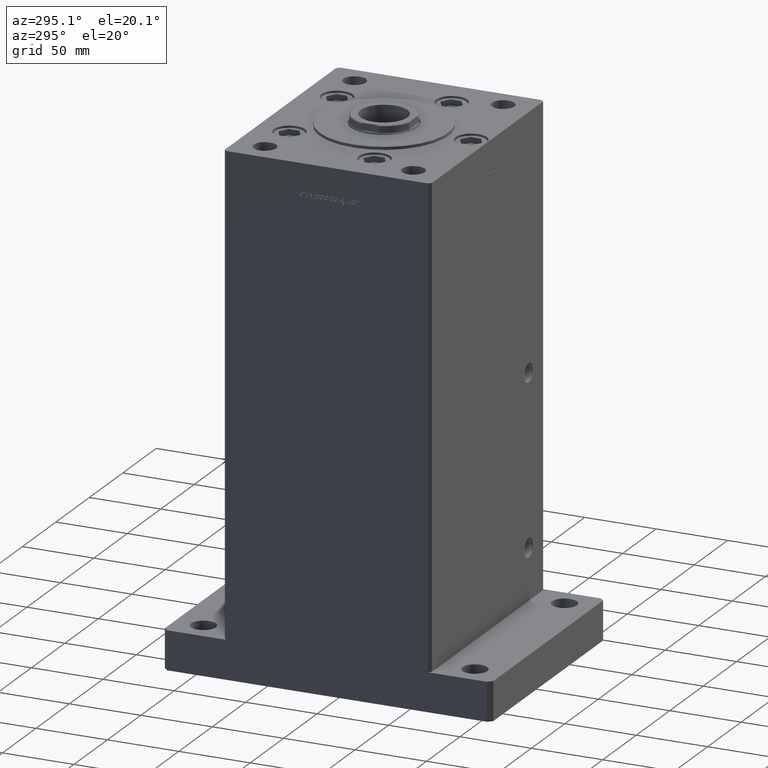
[diagram: clean part render]
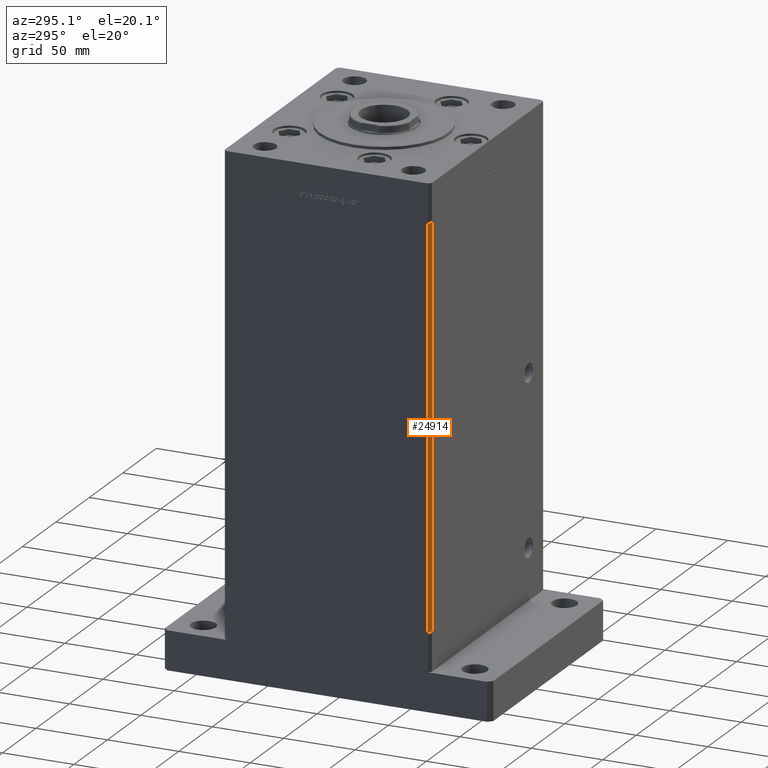
[diagram: same view with one face highlighted and labeled with its STEP entity id]
A machine part, auxiliary view. The second image highlights one B-rep face of the part: STEP entity #24914.
In plain terms, the highlighted planar face has unit normal (0.7071, 0.7071, 0).
Its self-contained STEP definition (entity closure, byte-faithful):
#1513 = PLANE ( 'NONE',  #44252 ) ;
#3188 = LINE ( 'NONE', #51088, #22667 ) ;
#6013 = EDGE_LOOP ( 'NONE', ( #22985, #15899, #51048, #39821 ) ) ;
#6419 = VERTEX_POINT ( 'NONE', #13480 ) ;
#6597 = CARTESIAN_POINT ( 'NONE',  ( -84.99999999999998579, -70.50000000000001421, 276.0000000000000000 ) ) ;
#7516 = VECTOR ( 'NONE', #16010, 1000.000000000000114 ) ;
#12018 = DIRECTION ( 'NONE',  ( -0.000000000000000000, -0.000000000000000000, -1.000000000000000000 ) ) ;
#13480 = CARTESIAN_POINT ( 'NONE',  ( -82.99999999999998579, -72.50000000000002842, 276.0000000000000000 ) ) ;
#15899 = ORIENTED_EDGE ( 'NONE', *, *, #32355, .F. ) ;
#16010 = DIRECTION ( 'NONE',  ( 0.7071067811865474617, -0.7071067811865474617, 0.000000000000000000 ) ) ;
#18267 = CARTESIAN_POINT ( 'NONE',  ( -84.99999999999998579, -70.50000000000001421, 0.000000000000000000 ) ) ;
#18895 = FACE_OUTER_BOUND ( 'NONE', #6013, .T. ) ;
#20848 = LINE ( 'NONE', #46796, #49874 ) ;
#21251 = VERTEX_POINT ( 'NONE', #18267 ) ;
#22667 = VECTOR ( 'NONE', #12018, 1000.000000000000000 ) ;
#22985 = ORIENTED_EDGE ( 'NONE', *, *, #32959, .T. ) ;
#23461 = CARTESIAN_POINT ( 'NONE',  ( -84.99999999999998579, -70.50000000000001421, 276.0000000000000000 ) ) ;
#24914 = ADVANCED_FACE ( 'NONE', ( #18895 ), #1513, .F. ) ;
#25286 = VECTOR ( 'NONE', #27542, 1000.000000000000000 ) ;
#27542 = DIRECTION ( 'NONE',  ( -0.000000000000000000, -0.000000000000000000, -1.000000000000000000 ) ) ;
#32355 = EDGE_CURVE ( 'NONE', #6419, #34083, #49220, .T. ) ;
#32959 = EDGE_CURVE ( 'NONE', #21251, #34083, #20848, .T. ) ;
#34083 = VERTEX_POINT ( 'NONE', #39254 ) ;
#34537 = CARTESIAN_POINT ( 'NONE',  ( -84.99999999999998579, -70.50000000000001421, 276.0000000000000000 ) ) ;
#36311 = EDGE_CURVE ( 'NONE', #49676, #21251, #3188, .T. ) ;
#39254 = CARTESIAN_POINT ( 'NONE',  ( -82.99999999999998579, -72.50000000000002842, 0.000000000000000000 ) ) ;
#39821 = ORIENTED_EDGE ( 'NONE', *, *, #36311, .T. ) ;
#42271 = EDGE_CURVE ( 'NONE', #49676, #6419, #50797, .T. ) ;
#44252 = AXIS2_PLACEMENT_3D ( 'NONE', #23461, #44574, #48573 ) ;
#44574 = DIRECTION ( 'NONE',  ( 0.7071067811865475727, 0.7071067811865475727, -0.000000000000000000 ) ) ;
#45520 = CARTESIAN_POINT ( 'NONE',  ( -82.99999999999998579, -72.50000000000002842, 276.0000000000000000 ) ) ;
#46796 = CARTESIAN_POINT ( 'NONE',  ( -84.99999999999998579, -70.50000000000001421, 0.000000000000000000 ) ) ;
#47078 = DIRECTION ( 'NONE',  ( 0.7071067811865474617, -0.7071067811865474617, 0.000000000000000000 ) ) ;
#48573 = DIRECTION ( 'NONE',  ( -0.7071067811865474617, 0.7071067811865474617, 0.000000000000000000 ) ) ;
#49220 = LINE ( 'NONE', #45520, #25286 ) ;
#49676 = VERTEX_POINT ( 'NONE', #34537 ) ;
#49874 = VECTOR ( 'NONE', #47078, 1000.000000000000114 ) ;
#50797 = LINE ( 'NONE', #6597, #7516 ) ;
#51048 = ORIENTED_EDGE ( 'NONE', *, *, #42271, .F. ) ;
#51088 = CARTESIAN_POINT ( 'NONE',  ( -84.99999999999998579, -70.50000000000001421, 276.0000000000000000 ) ) ;